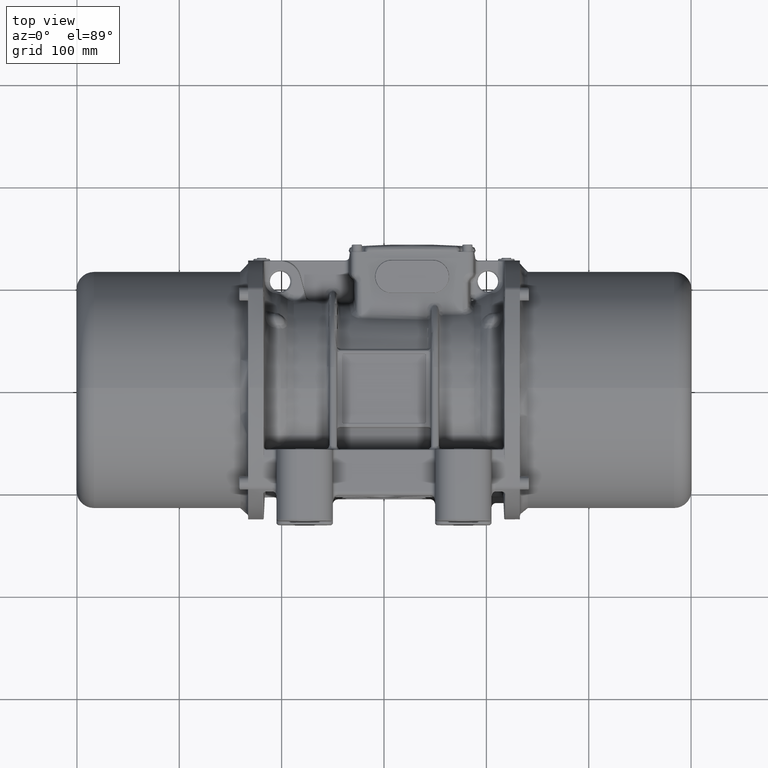
[diagram: clean part render]
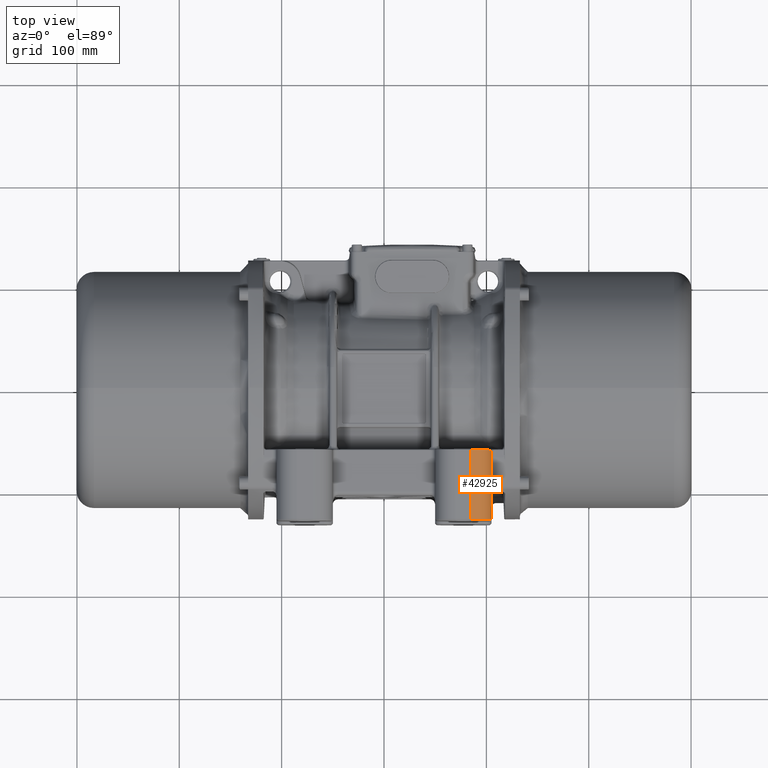
[diagram: same view with one face highlighted and labeled with its STEP entity id]
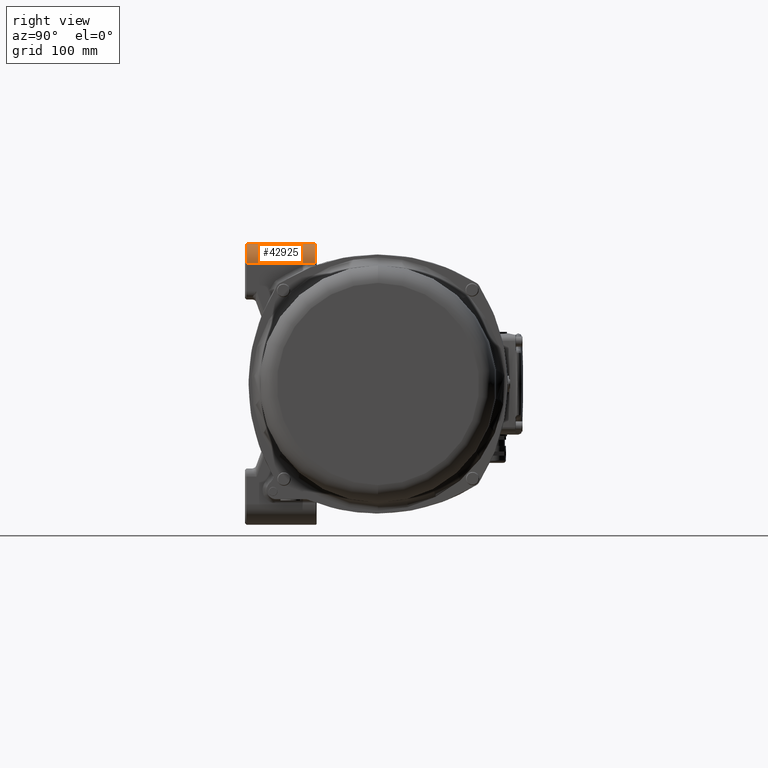
[diagram: same view with one face highlighted and labeled with its STEP entity id]
A machine part, top view. The second image highlights one B-rep face of the part: STEP entity #42925.
A second angle (right view) of the same face is appended — the face is thin or edge-on in the first view.
In plain terms, the highlighted cylindrical surface (edge-blend (fillet) strip) has radius 20 mm, axis along (0, 1, 0).
Its self-contained STEP definition (entity closure, byte-faithful):
#365 = CARTESIAN_POINT ( 'NONE',  ( 85.00000000000000000, -128.5000000000000000, 117.5000000000000000 ) ) ;
#3692 = CARTESIAN_POINT ( 'NONE',  ( 105.0000000000000000, -128.5000000000000000, 117.5000000000000000 ) ) ;
#12707 = DIRECTION ( 'NONE',  ( 0.0000000000000000000, 1.000000000000000000, 0.0000000000000000000 ) ) ;
#14020 = DIRECTION ( 'NONE',  ( 0.0000000000000000000, 0.0000000000000000000, 1.000000000000000000 ) ) ;
#20082 = DIRECTION ( 'NONE',  ( 0.0000000000000000000, 0.0000000000000000000, 1.000000000000000000 ) ) ;
#23173 = EDGE_CURVE ( 'NONE', #121127, #77761, #112751, .T. ) ;
#24031 = CARTESIAN_POINT ( 'NONE',  ( 105.0000000000000000, -94.75000000000000000, 117.5000000000000000 ) ) ;
#24437 = CIRCLE ( 'NONE', #96582, 20.00000000000000400 ) ;
#28783 = VECTOR ( 'NONE', #66391, 1000.000000000000000 ) ;
#32835 = CARTESIAN_POINT ( 'NONE',  ( 85.00000000000000000, -128.5000000000000000, 117.5000000000000000 ) ) ;
#34082 = DIRECTION ( 'NONE',  ( 0.0000000000000000000, -1.000000000000000000, 0.0000000000000000000 ) ) ;
#35790 = CIRCLE ( 'NONE', #50754, 19.99999999999998900 ) ;
#37567 = DIRECTION ( 'NONE',  ( 0.0000000000000000000, 1.000000000000000000, 0.0000000000000000000 ) ) ;
#40417 = EDGE_CURVE ( 'NONE', #86404, #77761, #35790, .T. ) ;
#41294 = CARTESIAN_POINT ( 'NONE',  ( 85.00000000000000000, -128.5000000000000000, 137.5000000000000000 ) ) ;
#41836 = DIRECTION ( 'NONE',  ( 0.0000000000000000000, -1.000000000000000000, 0.0000000000000000000 ) ) ;
#42925 = ADVANCED_FACE ( 'NONE', ( #85582 ), #118588, .T. ) ;
#47122 = EDGE_CURVE ( 'NONE', #122303, #86404, #60181, .T. ) ;
#50754 = AXIS2_PLACEMENT_3D ( 'NONE', #365, #37567, #20082 ) ;
#54259 = EDGE_CURVE ( 'NONE', #121127, #122303, #24437, .T. ) ;
#57902 = VECTOR ( 'NONE', #34082, 1000.000000000000000 ) ;
#60181 = LINE ( 'NONE', #82602, #28783 ) ;
#62976 = EDGE_LOOP ( 'NONE', ( #64842, #120507, #87193, #121377 ) ) ;
#63243 = DIRECTION ( 'NONE',  ( 0.0000000000000000000, 0.0000000000000000000, -1.000000000000000000 ) ) ;
#64842 = ORIENTED_EDGE ( 'NONE', *, *, #47122, .T. ) ;
#66075 = CARTESIAN_POINT ( 'NONE',  ( 105.0000000000000000, -61.00000000000000000, 117.5000000000000000 ) ) ;
#66391 = DIRECTION ( 'NONE',  ( 0.0000000000000000000, -1.000000000000000000, 0.0000000000000000000 ) ) ;
#69412 = AXIS2_PLACEMENT_3D ( 'NONE', #32835, #12707, #14020 ) ;
#77043 = CARTESIAN_POINT ( 'NONE',  ( 85.00000000000000000, -61.00000000000000000, 137.5000000000000000 ) ) ;
#77761 = VERTEX_POINT ( 'NONE', #3692 ) ;
#82602 = CARTESIAN_POINT ( 'NONE',  ( 85.00000000000000000, -94.75000000000000000, 137.5000000000000000 ) ) ;
#85582 = FACE_OUTER_BOUND ( 'NONE', #62976, .T. ) ;
#86404 = VERTEX_POINT ( 'NONE', #41294 ) ;
#87193 = ORIENTED_EDGE ( 'NONE', *, *, #23173, .F. ) ;
#96582 = AXIS2_PLACEMENT_3D ( 'NONE', #122448, #41836, #63243 ) ;
#112751 = LINE ( 'NONE', #24031, #57902 ) ;
#118588 = CYLINDRICAL_SURFACE ( 'NONE', #69412, 19.99999999999998900 ) ;
#120507 = ORIENTED_EDGE ( 'NONE', *, *, #40417, .T. ) ;
#121127 = VERTEX_POINT ( 'NONE', #66075 ) ;
#121377 = ORIENTED_EDGE ( 'NONE', *, *, #54259, .T. ) ;
#122303 = VERTEX_POINT ( 'NONE', #77043 ) ;
#122448 = CARTESIAN_POINT ( 'NONE',  ( 85.00000000000000000, -61.00000000000000000, 117.5000000000000000 ) ) ;